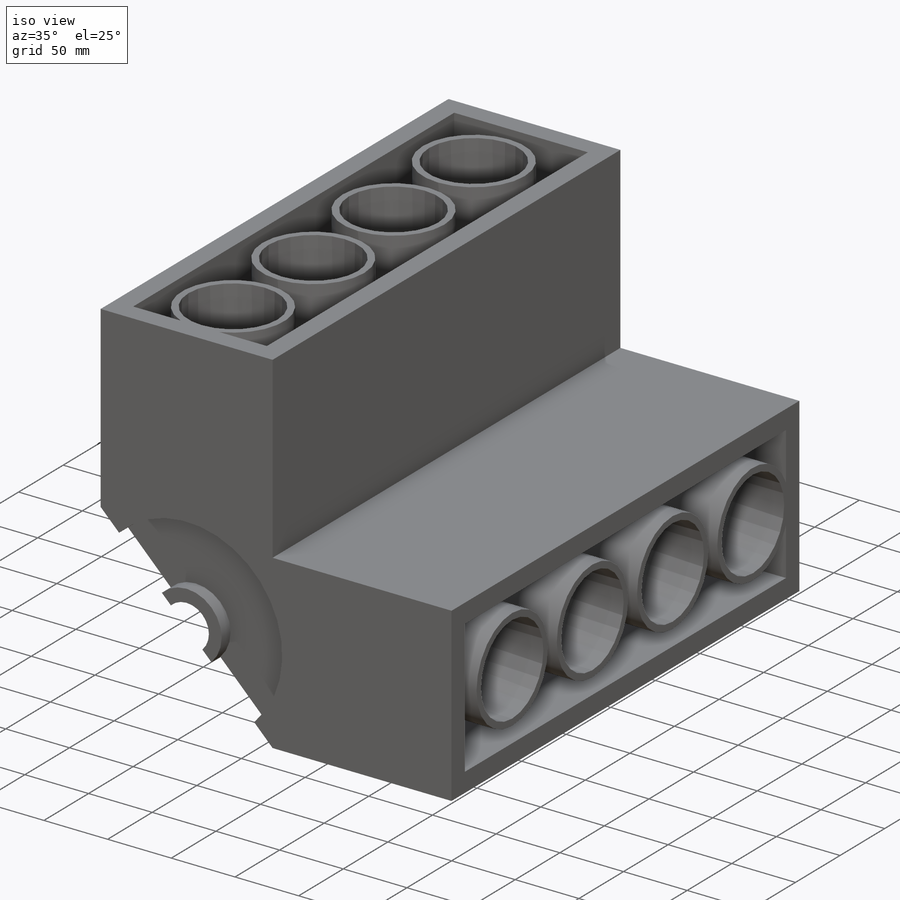
[diagram: iso view]
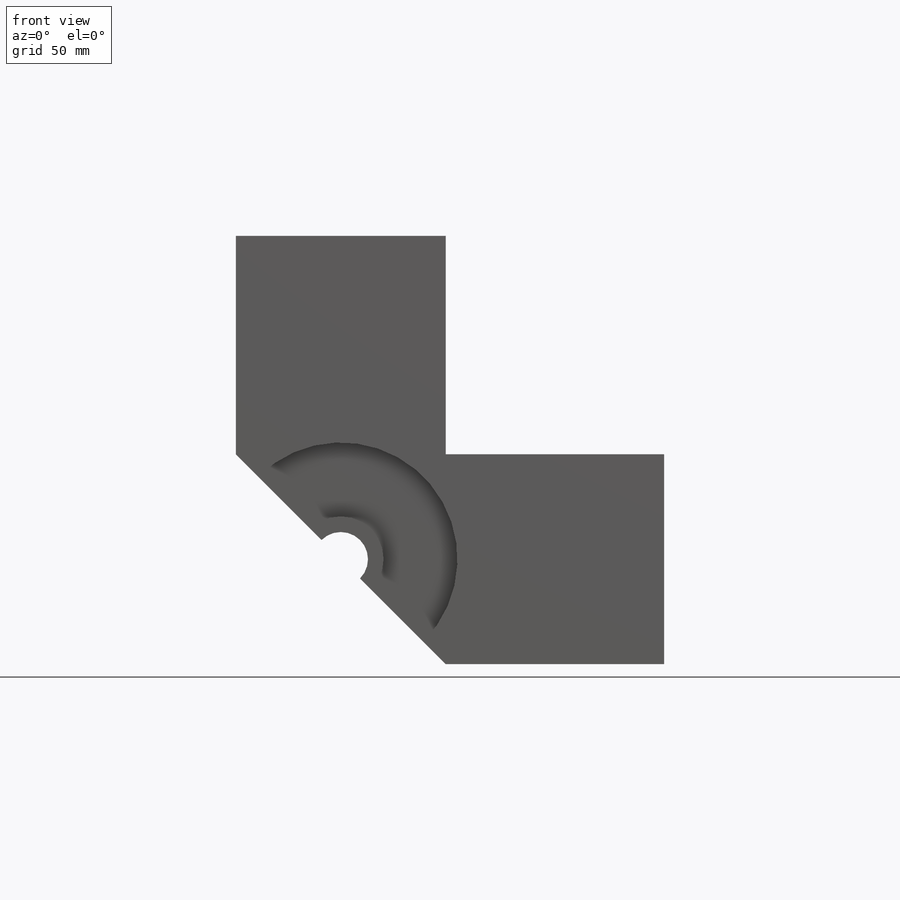
[diagram: front view]
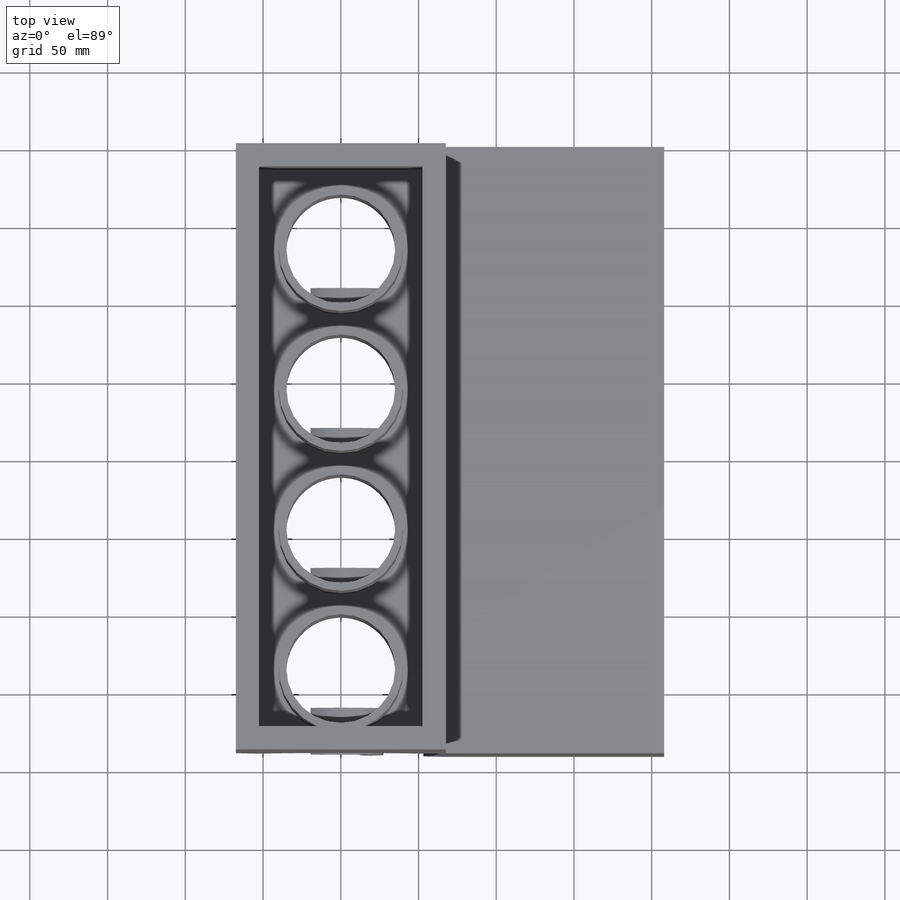
[diagram: top view]
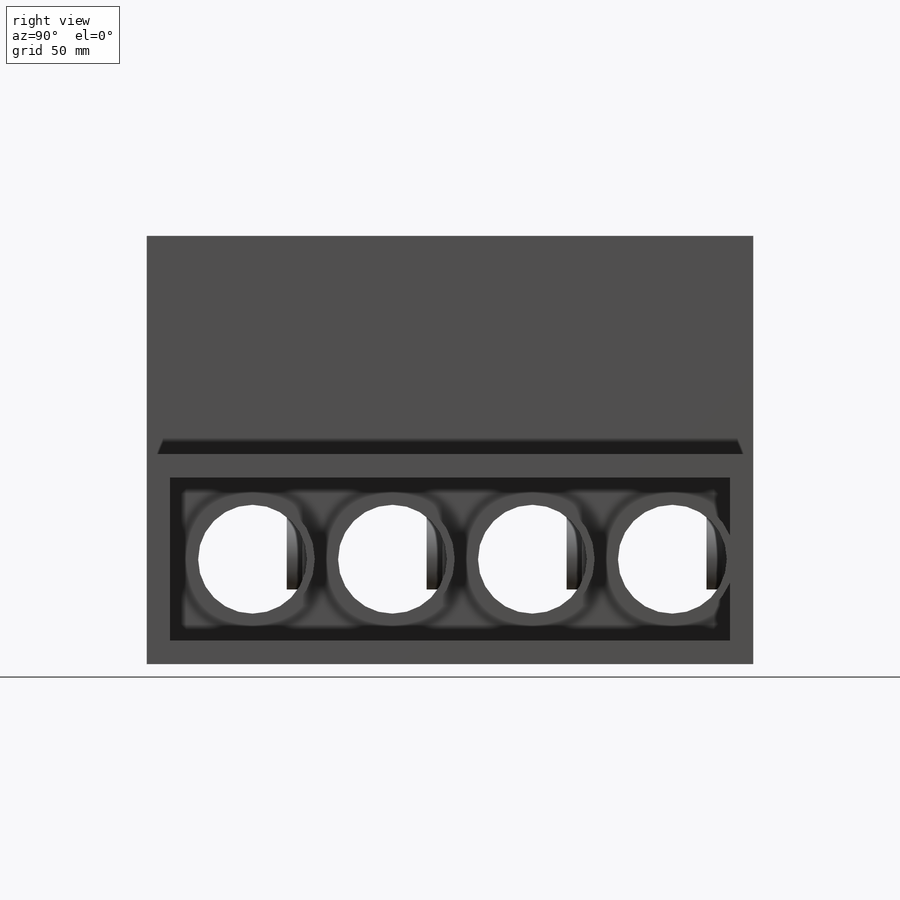
[diagram: right view]
SOLIDWORKS PART (.sldprt)
format: sldprt  version: not decoded by parser v0  size: 438,272 bytes
history: native  units: mm
features: sketch x9, plane x5, extrude x5, pattern_linear x3, cut_extrude x3, material x1, mirror x1 (+8 scaffold rows collapsed)
feature tree (35):
  scaffold x8  (default folders/planes/origin — collapsed)
  material  "Material <sin especificar>"
  plane  "Alzado"
  plane  "Planta"
  plane  "Vista lateral"
  sketch  "Croquis1"  dims[c1.D1=35.0mm c1.D2=55.0mm c1.D3=150.0mm c1.D4=220.0mm c2.D4=~39.240717deg c3.D4=220.0mm c4.D4=~140.759283deg c5.D4=360.0mm c6.D4=45.0deg c6.D5=208.0mm c6.D6=135.0mm c6.D7=275.5mm c6.D8=275.5mm]
  extrude  "Saliente-Extruir4"  Depth=390mm
  plane  "Plano2"  Offset=10mm
  extrude  "Saliente-Extruir5"  [1 undecoded]
  sketch  "Croquis1<7>"  dims[D1=10.0mm]
  extrude  "Saliente-Extruir6"  [1 undecoded]
  sketch  "Croquis1<8>"  dims[D1=30.0mm]
  pattern_linear  "MatrizL1"  Count1=5 Count2=1 Spacing1=90mm Spacing2=10mm
  sketch  "Croquis6"  dims[D1=105.0mm D2=360.0mm D3=15.0mm D4=15.0mm]
  cut_extrude  "Cortar-Extruir2"  Depth=120mm
  sketch  "Croquis8"  dims[D2=80.0mm D3=70.0mm D1=52.0mm]
  plane  "Plano4"
  mirror  "Simetría2"
  sketch  "Croquis16"  dims[D2=70.0mm D1=52.0mm]
  cut_extrude  "Cortar-Extruir7"  [1 undecoded]
  sketch  "Croquis17"  dims[D1=80.0mm]
  extrude  "Saliente-Extruir10"  [1 undecoded]
  sketch  "Croquis18"  dims[c1.D2=70.0mm c1.D1=52.0mm c2.D2=338.0mm]
  cut_extrude  "Cortar-Extruir8"  [1 undecoded]
  sketch  "Croquis19"  dims[D1=80.0mm]
  extrude  "Saliente-Extruir11"  [1 undecoded]
  pattern_linear  "MatrizL7"  Count1=4 Count2=1 Spacing1=90mm Spacing2=10mm
  pattern_linear  "MatrizL10"  Count1=4 Count2=1 Spacing1=90mm Spacing2=10mm
decode coverage: 14 of 21 modeling features carry decoded parameters
note: ~ marks probable driven/reference dimensions
note: 6 parameter values undecoded
summary: no parameter record found for 6 features
note: suppression state not decoded; provenance and decode notes live in map.json
